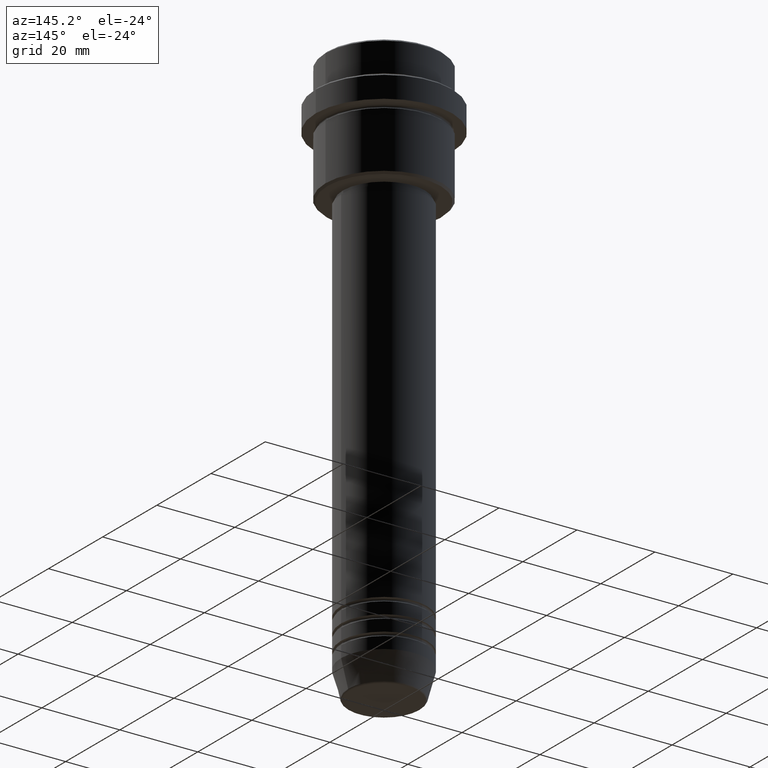
[diagram: clean part render]
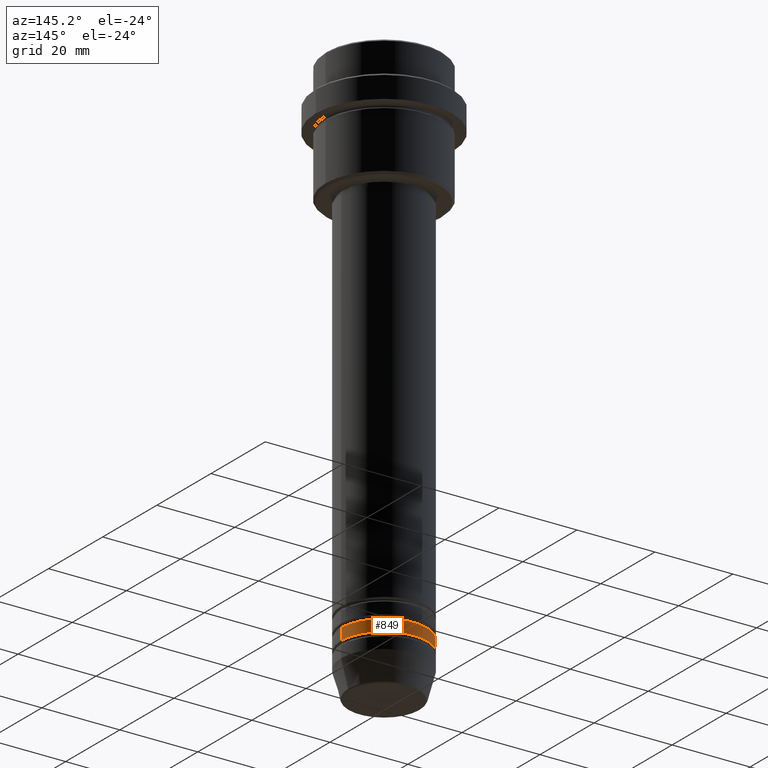
[diagram: same view with one face highlighted and labeled with its STEP entity id]
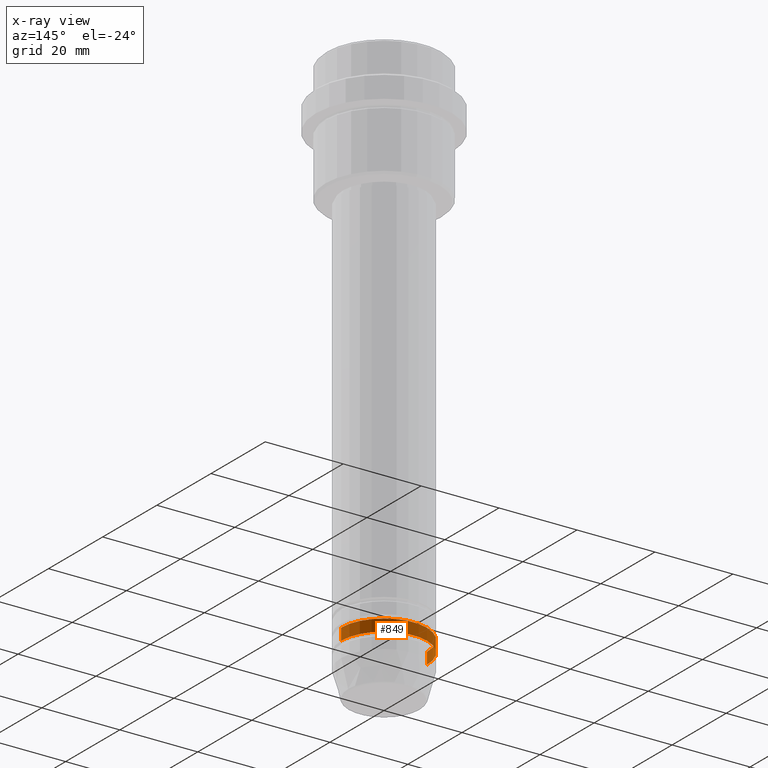
[diagram: x-ray of the same camera — body ghosted, the highlighted face saturated]
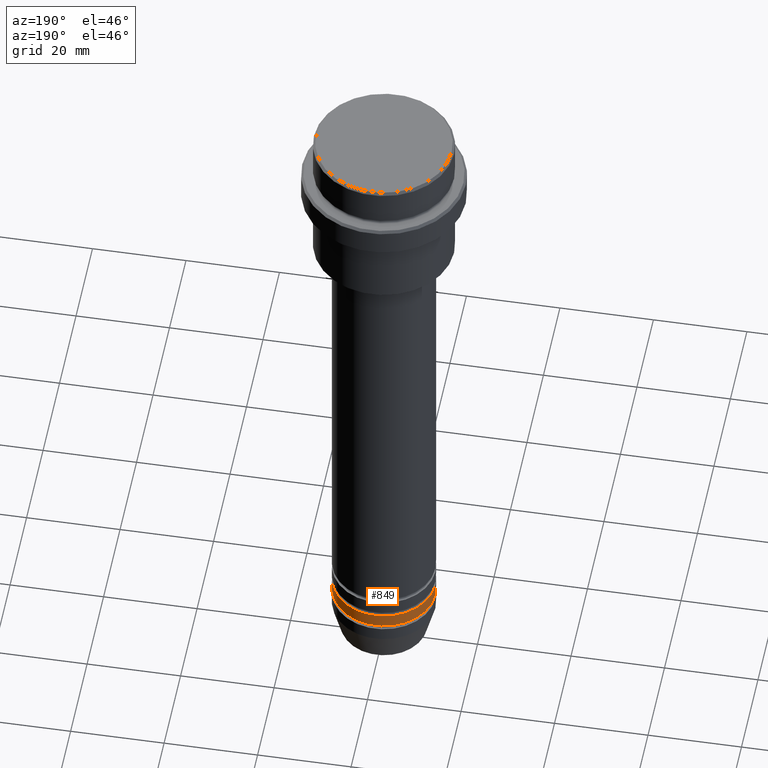
[diagram: same view with one face highlighted and labeled with its STEP entity id]
A machine part, auxiliary view. The second image highlights one B-rep face of the part: STEP entity #849.
The next image is the same camera in x-ray: the body ghosted, the highlighted face saturated — about 0% of this face is hidden behind the body in this view.
A second angle (auxiliary view) of the same face is appended — the face is thin or edge-on in the first view.
In plain terms, the highlighted cylindrical surface (partial cylindrical patch) has radius 11 mm, axis along (-0, -0, 1).
Its self-contained STEP definition (entity closure, byte-faithful):
#35 = DIRECTION ( 'NONE',  ( -0.000000000000000000, -0.000000000000000000, 1.000000000000000000 ) ) ;
#94 = VERTEX_POINT ( 'NONE', #1377 ) ;
#112 = EDGE_CURVE ( 'NONE', #277, #1319, #1022, .T. ) ;
#162 = EDGE_CURVE ( 'NONE', #94, #277, #302, .T. ) ;
#169 = VECTOR ( 'NONE', #1330, 1000.000000000000000 ) ;
#186 = CARTESIAN_POINT ( 'NONE',  ( 0.000000000000000000, 0.000000000000000000, -131.9999999999998579 ) ) ;
#240 = ORIENTED_EDGE ( 'NONE', *, *, #814, .T. ) ;
#259 = CYLINDRICAL_SURFACE ( 'NONE', #757, 11.00000000000000000 ) ;
#277 = VERTEX_POINT ( 'NONE', #321 ) ;
#302 = LINE ( 'NONE', #1281, #1084 ) ;
#321 = CARTESIAN_POINT ( 'NONE',  ( 11.00000000000000000, 0.000000000000000000, -131.9999999999998579 ) ) ;
#331 = AXIS2_PLACEMENT_3D ( 'NONE', #186, #1166, #1184 ) ;
#354 = CIRCLE ( 'NONE', #513, 11.00000000000000000 ) ;
#461 = CARTESIAN_POINT ( 'NONE',  ( 0.000000000000000000, 0.000000000000000000, 0.000000000000000000 ) ) ;
#465 = EDGE_LOOP ( 'NONE', ( #1175, #240, #1343, #575 ) ) ;
#471 = CARTESIAN_POINT ( 'NONE',  ( -11.00000000000000000, 1.347111479062088405E-15, -131.9999999999998579 ) ) ;
#513 = AXIS2_PLACEMENT_3D ( 'NONE', #642, #1102, #768 ) ;
#569 = CARTESIAN_POINT ( 'NONE',  ( -11.00000000000000000, 1.347111479062088405E-15, 0.000000000000000000 ) ) ;
#575 = ORIENTED_EDGE ( 'NONE', *, *, #162, .F. ) ;
#583 = LINE ( 'NONE', #569, #169 ) ;
#642 = CARTESIAN_POINT ( 'NONE',  ( 0.000000000000000000, 0.000000000000000000, -134.9999999999998295 ) ) ;
#693 = EDGE_CURVE ( 'NONE', #94, #1405, #354, .T. ) ;
#757 = AXIS2_PLACEMENT_3D ( 'NONE', #461, #35, #1120 ) ;
#768 = DIRECTION ( 'NONE',  ( 1.000000000000000000, 0.000000000000000000, 0.000000000000000000 ) ) ;
#814 = EDGE_CURVE ( 'NONE', #1405, #1319, #583, .T. ) ;
#849 = ADVANCED_FACE ( 'NONE', ( #1246 ), #259, .T. ) ;
#1022 = CIRCLE ( 'NONE', #331, 11.00000000000000000 ) ;
#1084 = VECTOR ( 'NONE', #1374, 1000.000000000000000 ) ;
#1102 = DIRECTION ( 'NONE',  ( -0.000000000000000000, -0.000000000000000000, 1.000000000000000000 ) ) ;
#1120 = DIRECTION ( 'NONE',  ( 1.000000000000000000, 0.000000000000000000, 0.000000000000000000 ) ) ;
#1166 = DIRECTION ( 'NONE',  ( -0.000000000000000000, -0.000000000000000000, 1.000000000000000000 ) ) ;
#1175 = ORIENTED_EDGE ( 'NONE', *, *, #693, .T. ) ;
#1184 = DIRECTION ( 'NONE',  ( 1.000000000000000000, 0.000000000000000000, 0.000000000000000000 ) ) ;
#1246 = FACE_OUTER_BOUND ( 'NONE', #465, .T. ) ;
#1281 = CARTESIAN_POINT ( 'NONE',  ( 11.00000000000000000, 0.000000000000000000, 0.000000000000000000 ) ) ;
#1319 = VERTEX_POINT ( 'NONE', #471 ) ;
#1330 = DIRECTION ( 'NONE',  ( -0.000000000000000000, -0.000000000000000000, 1.000000000000000000 ) ) ;
#1343 = ORIENTED_EDGE ( 'NONE', *, *, #112, .F. ) ;
#1374 = DIRECTION ( 'NONE',  ( -0.000000000000000000, -0.000000000000000000, 1.000000000000000000 ) ) ;
#1377 = CARTESIAN_POINT ( 'NONE',  ( 11.00000000000000000, 0.000000000000000000, -134.9999999999998295 ) ) ;
#1393 = CARTESIAN_POINT ( 'NONE',  ( -11.00000000000000000, 1.347111479062088405E-15, -134.9999999999998295 ) ) ;
#1405 = VERTEX_POINT ( 'NONE', #1393 ) ;